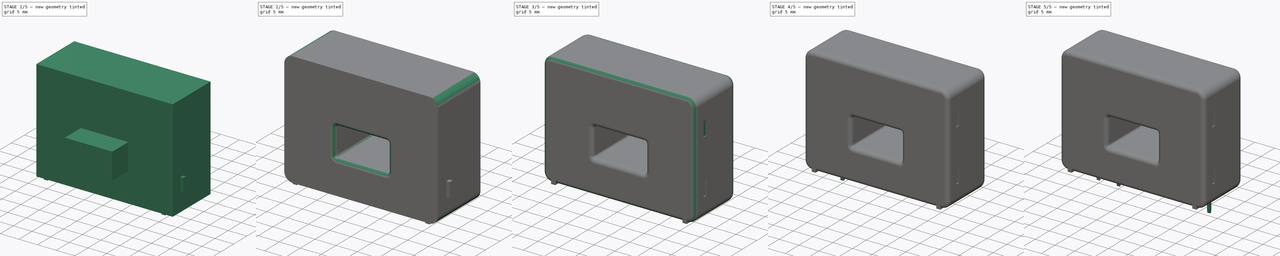
[diagram: build sequence overview — one tinted view per stage of 5, left to right]
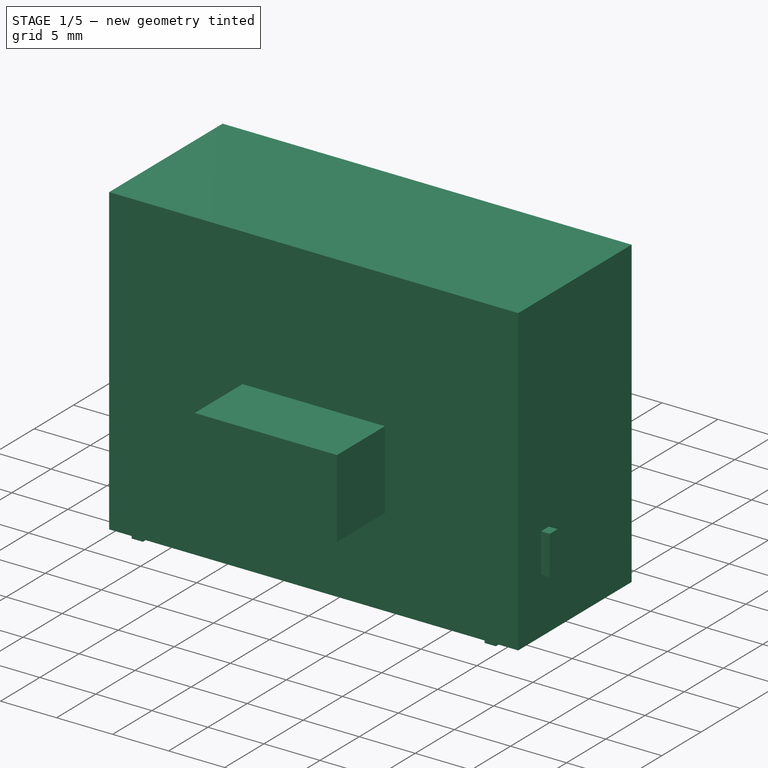
[diagram: stage 1 of 5 — iso view after this stage's code; geometry added in this stage tinted green]
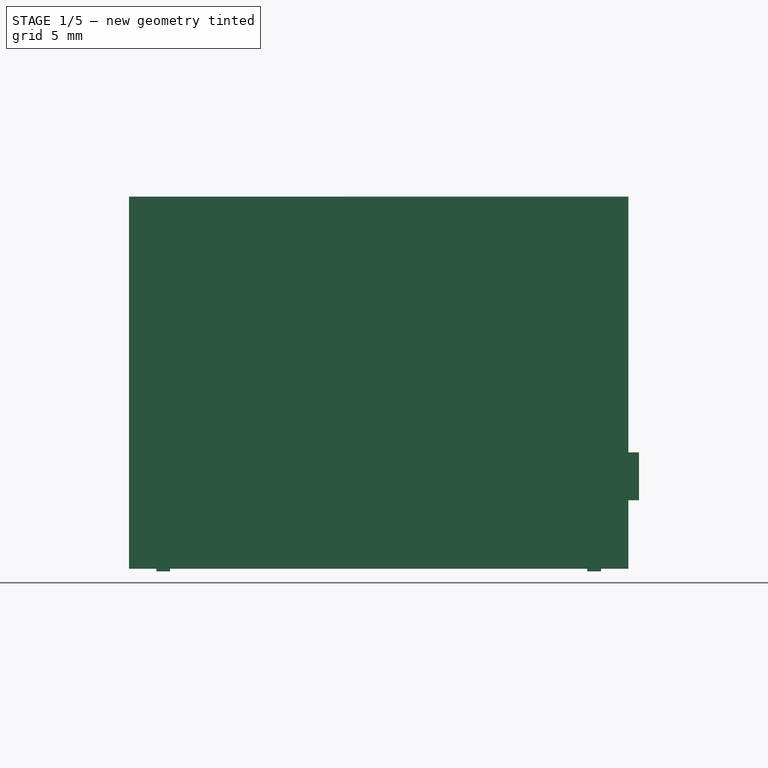
[diagram: stage 1 of 5 — front view after this stage's code; geometry added in this stage tinted green]
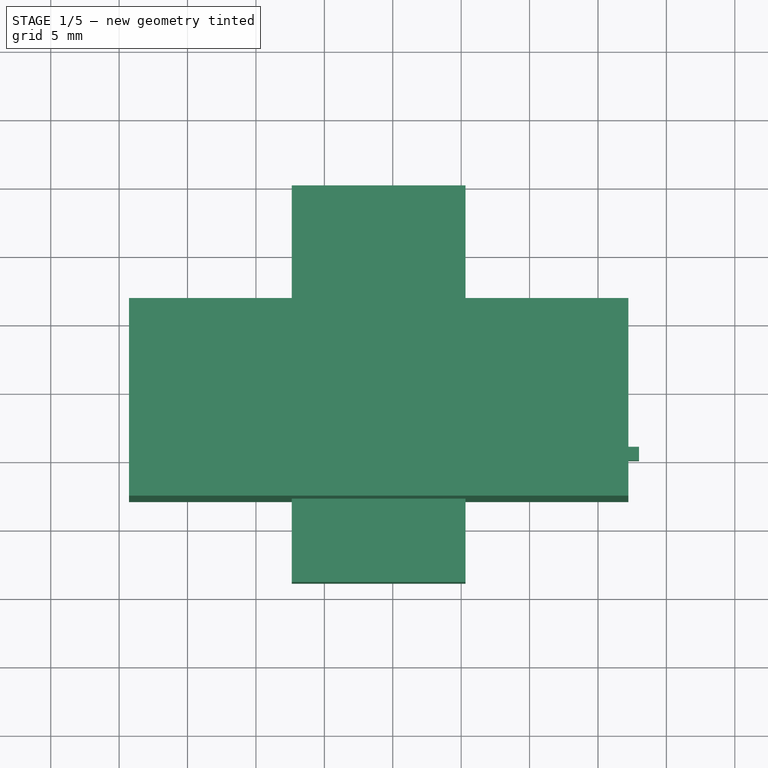
[diagram: stage 1 of 5 — top view after this stage's code; geometry added in this stage tinted green]
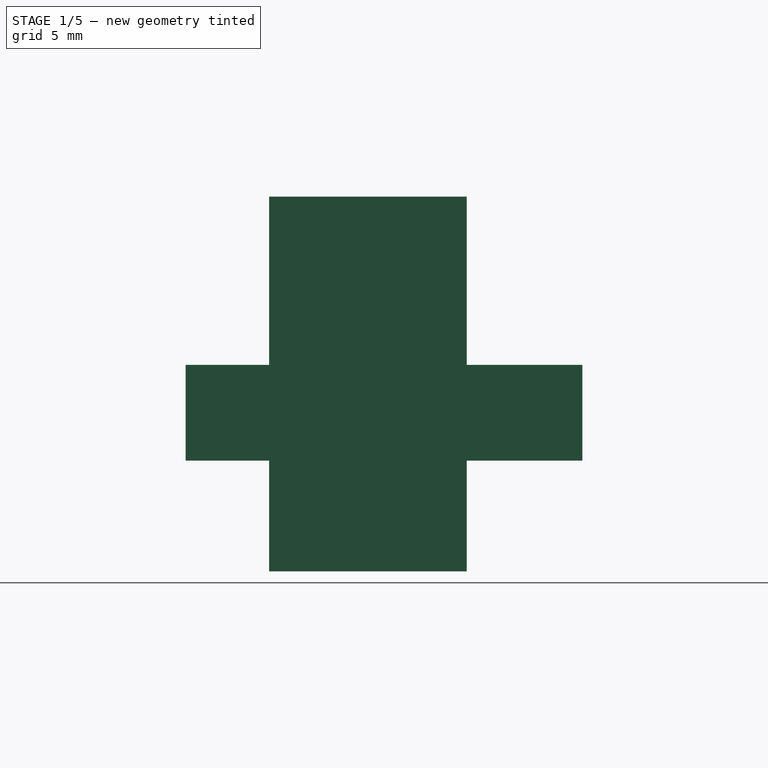
[diagram: stage 1 of 5 — right view after this stage's code; geometry added in this stage tinted green]
FCSTD DOCUMENT  (FreeCAD 0.17R11223 (Git))
Label: LEM_LA25-P_08
License: All rights reserved
LicenseURL: http://en.wikipedia.org/wiki/All_rights_reserved
objects: Part::Box×10, Part::Fillet×6, Part::Cut×5, Part::Chamfer×3, Sketcher::SketchObject×1, PartDesign::Pad×1, PartDesign::Body×1, Part::MultiFuse×1
note: 29 computed .brp shape members not serialized (recipe doc carries the construction recipe); baked Part::Feature solids carry a one-line shape summary decoded from their .brp

FEATURE [Sketcher::SketchObject] Sketch
  MapMode = 5
  Support = -> [XY_Plane]
  sketch-geometry (4):
    g0: LineSegment StartX=-4.28 StartY=6.55 StartZ=0 EndX=32.22 EndY=6.55 EndZ=0
    g1: LineSegment StartX=32.22 StartY=6.55 StartZ=0 EndX=32.22 EndY=-7.9 EndZ=0
    g2: LineSegment StartX=32.22 StartY=-7.9 StartZ=0 EndX=-4.28 EndY=-7.9 EndZ=0
    g3: LineSegment StartX=-4.28 StartY=-7.9 StartZ=0 EndX=-4.28 EndY=6.55 EndZ=0
  constraints (12):
    c: Coincident(g0,g1)
    c: Coincident(g1,g2)
    c: Coincident(g2,g3)
    c: Coincident(g3,g0)
    c: Horizontal(g0)
    c: Horizontal(g2)
    c: Vertical(g1)
    c: Vertical(g3)
    c: DistanceX(g0,g0) = 36.5
    c: DistanceY(g1,g0) = 14.45
    c: DistanceX(g0,g-1) = 4.28
    c: DistanceY(g-1,g0) = 6.55
FEATURE [PartDesign::Pad] Pad
  Length = 27.2
  Length2 = 100
  Profile = -> Sketch
  Type = 0
FEATURE [Part::Box] Box003  label="Kub003"
  AttacherType = Attacher::AttachEngine3D
  Height = 7
  Length = 12.7
  Placement = pos=(7.62,-14,7.9) rot=(0,0,1;0rad)
  Width = 29
FEATURE [Part::Box] Box004  label="Kub004"
  AttacherType = Attacher::AttachEngine3D
  Height = 2.2
  Length = 1
  Placement = pos=(-2.28,-7.9,-0.2) rot=(0,0,1;0rad)
  Width = 14.45
FEATURE [Part::Box] Box005  label="Kub005"
  AttacherType = Attacher::AttachEngine3D
  Height = 2.2
  Length = 1
  Placement = pos=(29.22,-7.9,-0.2) rot=(0,0,1;0rad)
  Width = 14.45
FEATURE [Part::Box] Box006  label="Kub006"
  AttacherType = Attacher::AttachEngine3D
  Height = 3.5
  Length = 1
  Placement = pos=(32,-5,5) rot=(0,0,1;0rad)
  Width = 1
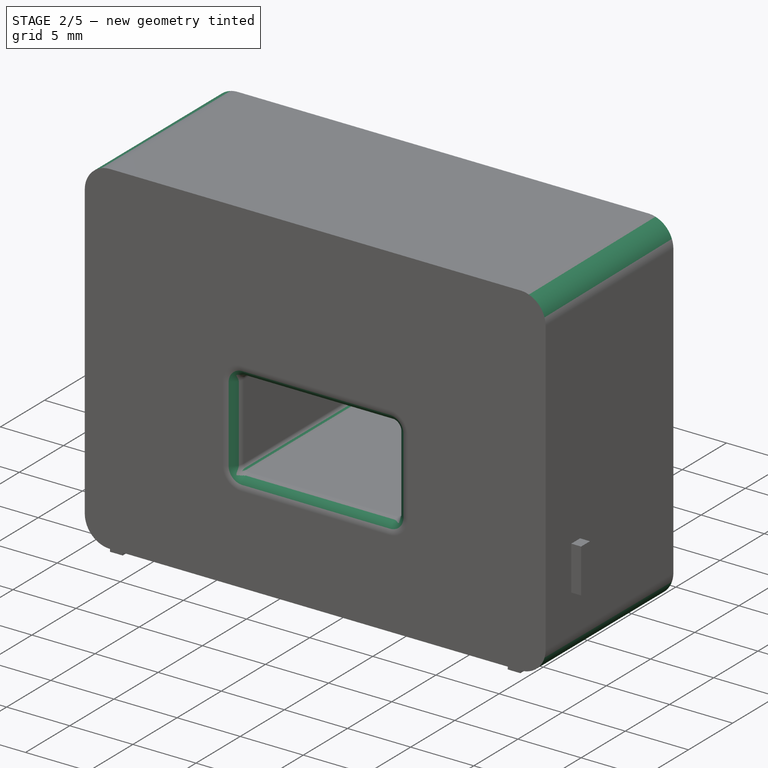
[diagram: stage 2 of 5 — iso view after this stage's code; geometry added in this stage tinted green]
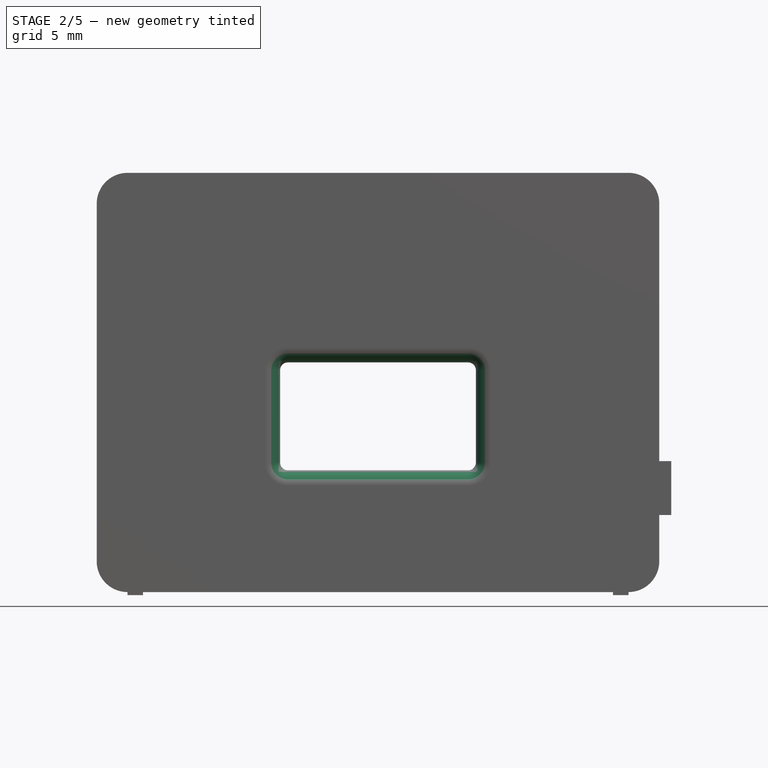
[diagram: stage 2 of 5 — front view after this stage's code; geometry added in this stage tinted green]
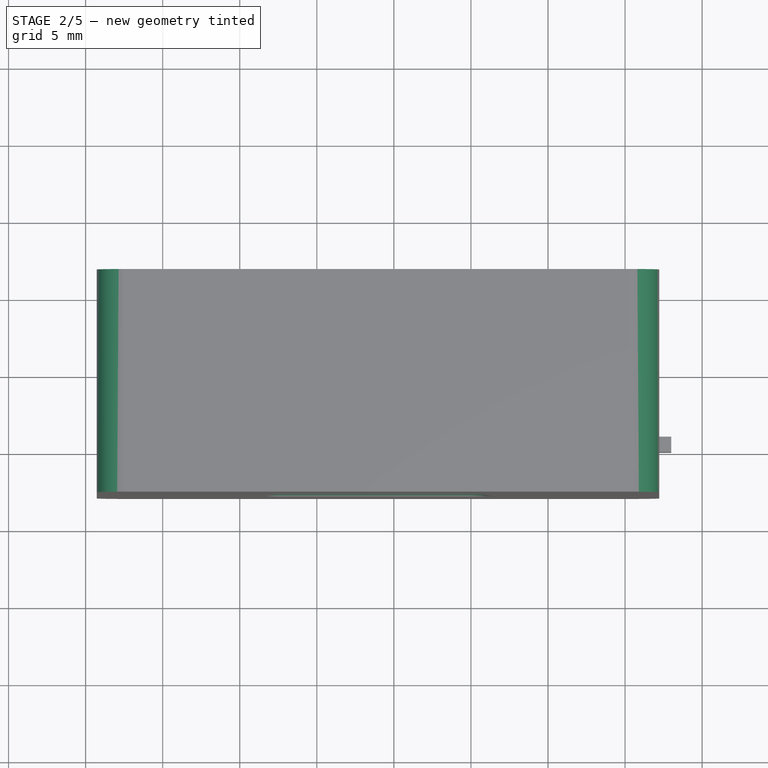
[diagram: stage 2 of 5 — top view after this stage's code; geometry added in this stage tinted green]
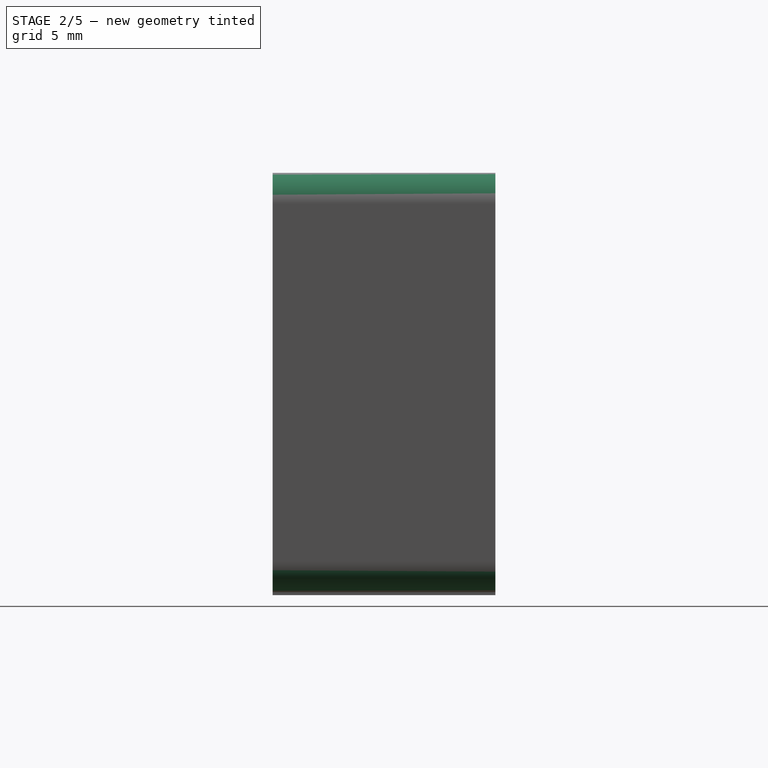
[diagram: stage 2 of 5 — right view after this stage's code; geometry added in this stage tinted green]
FEATURE [Part::Cut] Cut
  Base = -> Body
  Tool = -> Box003
FEATURE [Part::Fillet] Fillet
  Base = -> Cut
  Edges = 4 edges r=0.5: [Edge17,Edge18,Edge20,Edge22]
FEATURE [Part::Fillet] Fillet001
  Base = -> Fillet
  Edges = 8 edges r=1: [Edge15,Edge16,Edge18,Edge21,Edge23,Edge24,Edge26,Edge28]
FEATURE [Part::Fillet] Fillet002
  Base = -> Fillet001
  Edges = 7 edges r=1: [Edge3,Edge11,Edge12,Edge13,Edge14,Edge15,Edge16]
FEATURE [Part::Fillet] Fillet003
  Base = -> Fillet002
  Edges = 4 edges r=2: [Edge59,Edge60,Edge61,Edge62]
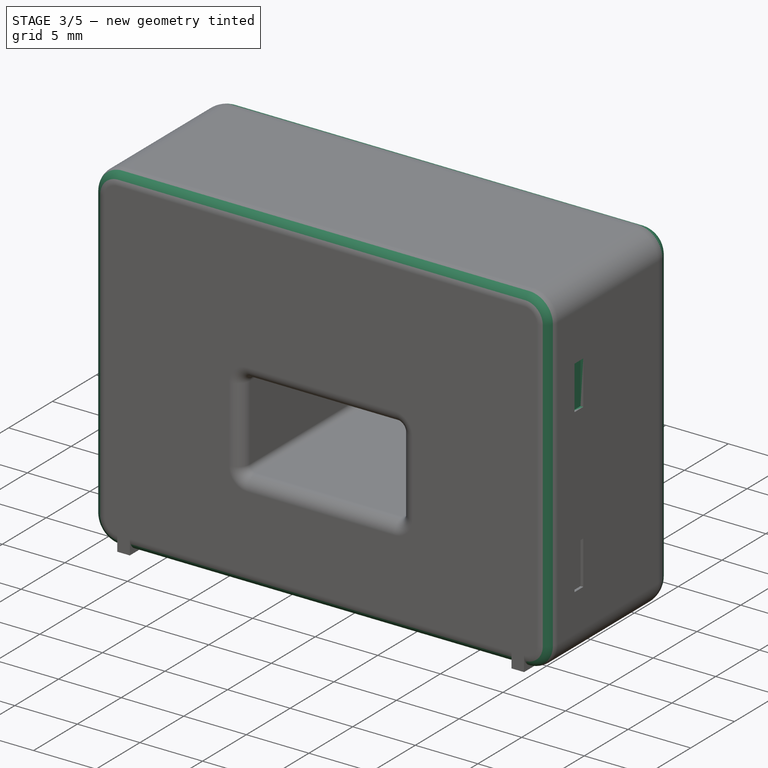
[diagram: stage 3 of 5 — iso view after this stage's code; geometry added in this stage tinted green]
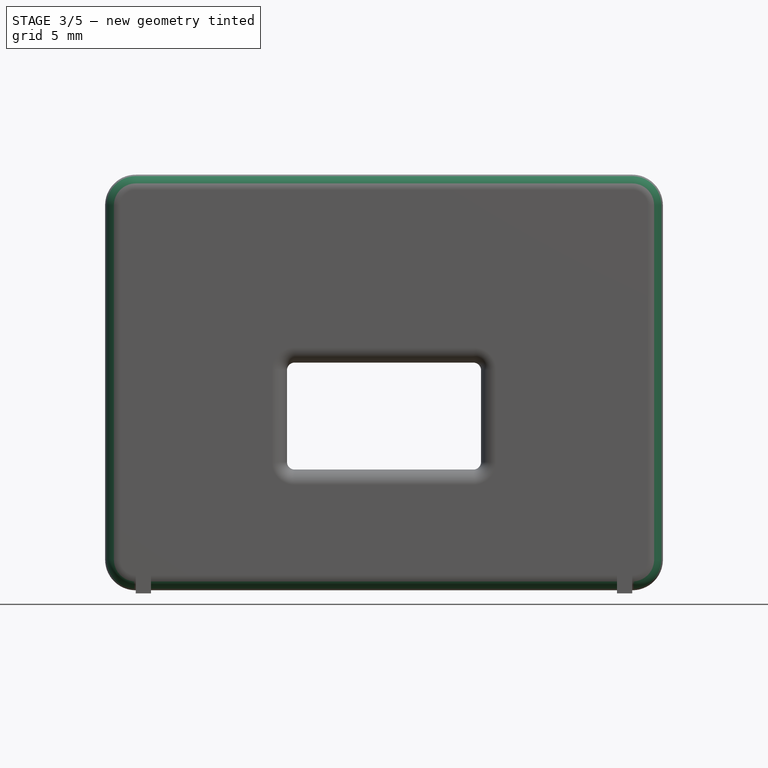
[diagram: stage 3 of 5 — front view after this stage's code; geometry added in this stage tinted green]
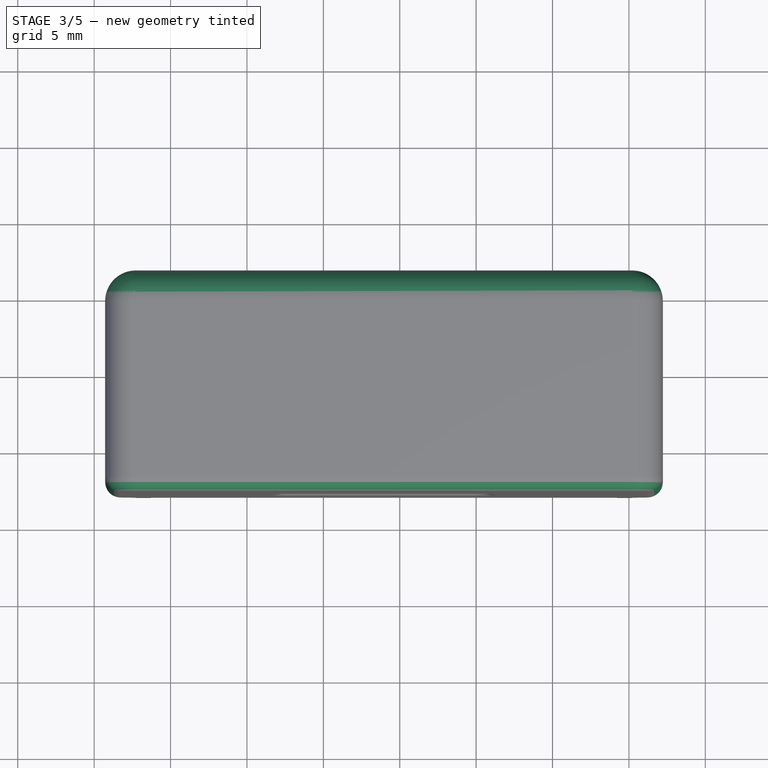
[diagram: stage 3 of 5 — top view after this stage's code; geometry added in this stage tinted green]
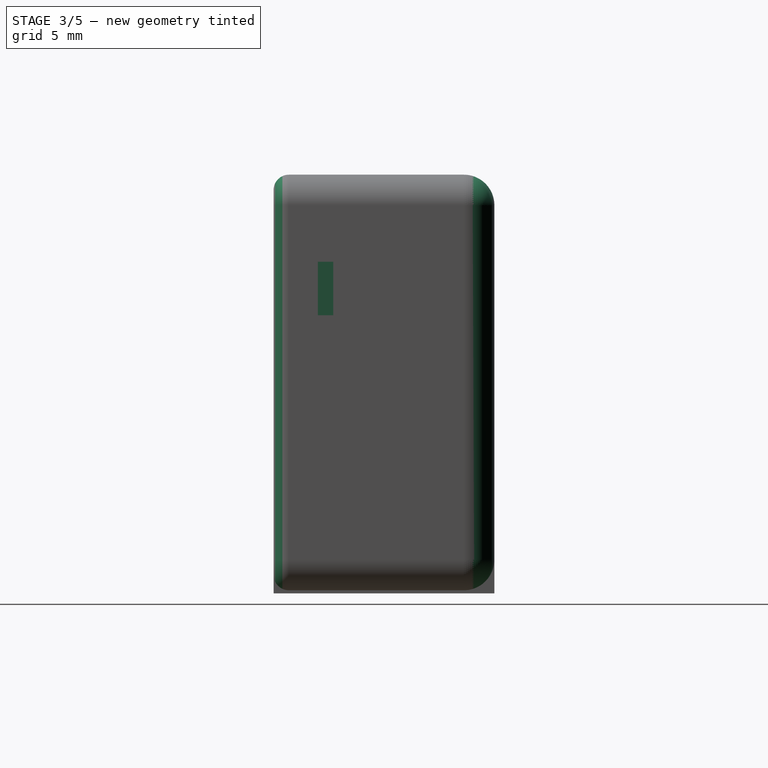
[diagram: stage 3 of 5 — right view after this stage's code; geometry added in this stage tinted green]
FEATURE [Part::Fillet] Fillet004
  Base = -> Fillet003
  Edges = 8 edges r=2: [Edge1,Edge2,Edge3,Edge4,Edge5,Edge6,Edge7,Edge8]
FEATURE [Part::Fillet] Fillet005
  Base = -> Fillet004
  Edges = 8 edges r=1: [Edge44,Edge51,Edge54,Edge59,Edge77,Edge78,Edge79,Edge80]
FEATURE [Part::MultiFuse] Fusion
  Shapes = -> [Fillet005,Box004,Box005]
FEATURE [Part::Box] Box007  label="Kub007"
  AttacherType = Attacher::AttachEngine3D
  Height = 3.5
  Length = 1
  Placement = pos=(32,-5,18) rot=(0,0,1;0rad)
  Width = 1
FEATURE [Part::Cut] Cut001
  Base = -> Fusion
  Tool = -> Box006
FEATURE [Part::Cut] Cut002
  Base = -> Cut001
  Tool = -> Box007
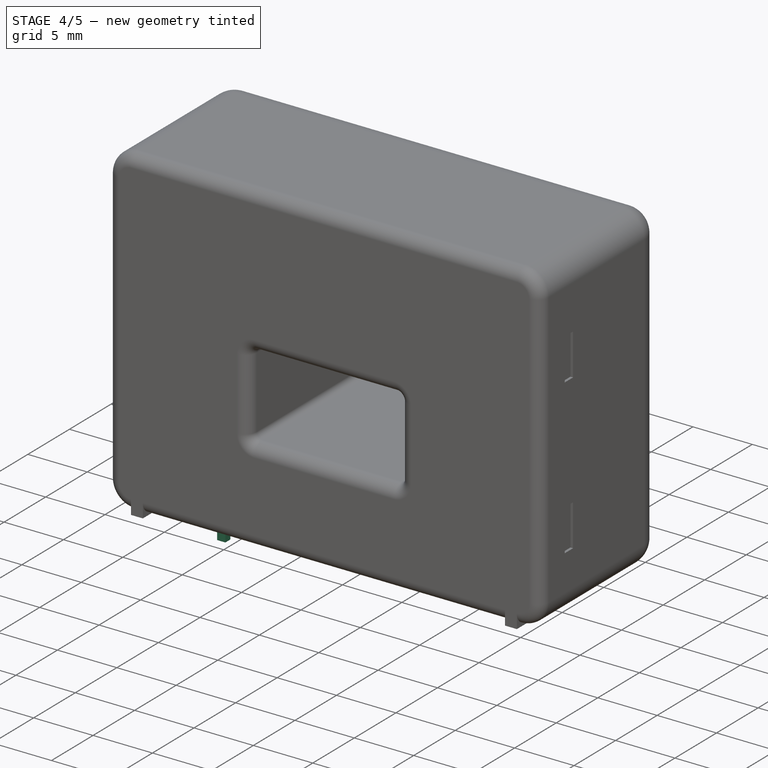
[diagram: stage 4 of 5 — iso view after this stage's code; geometry added in this stage tinted green]
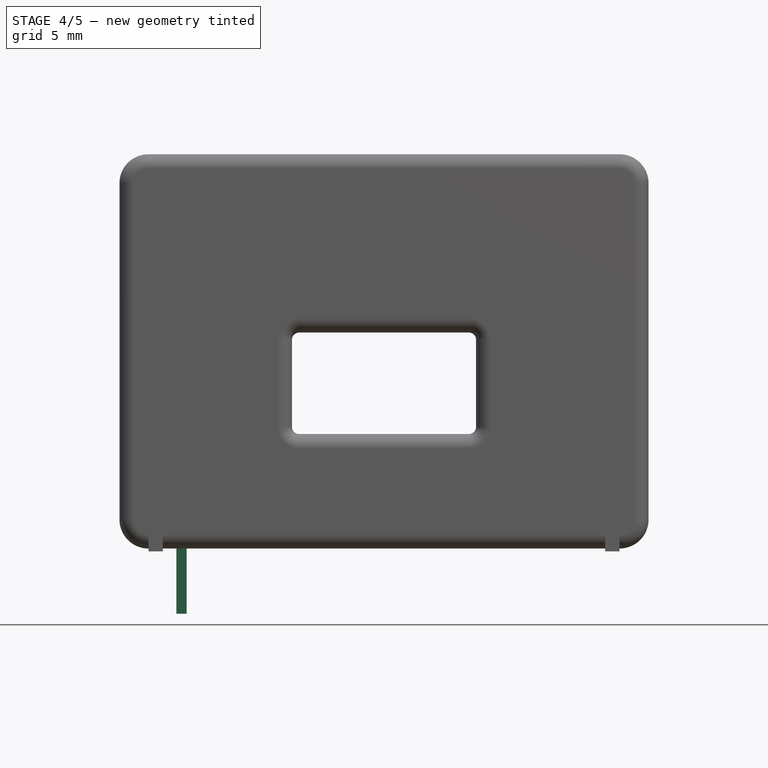
[diagram: stage 4 of 5 — front view after this stage's code; geometry added in this stage tinted green]
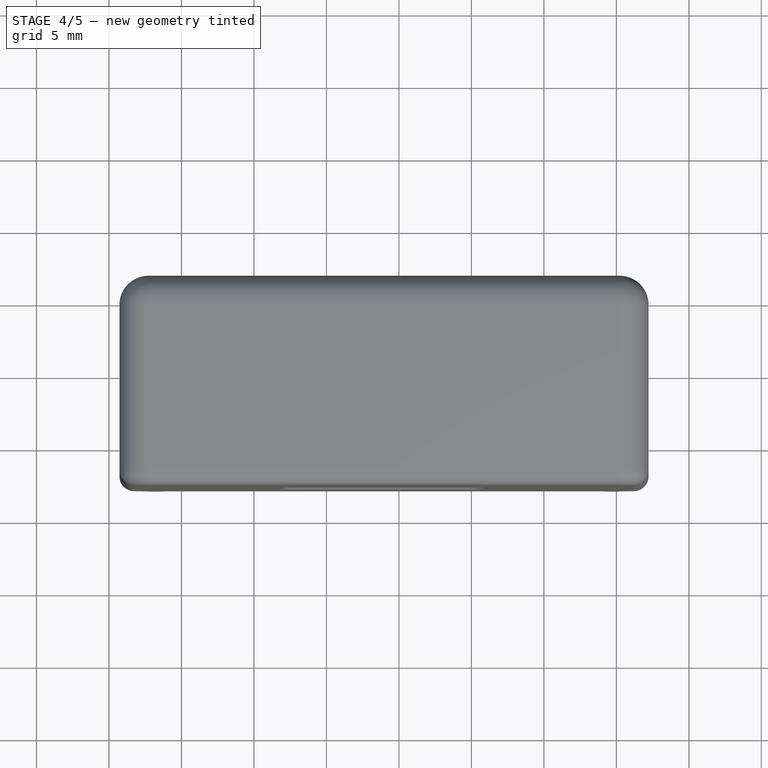
[diagram: stage 4 of 5 — top view after this stage's code; geometry added in this stage tinted green]
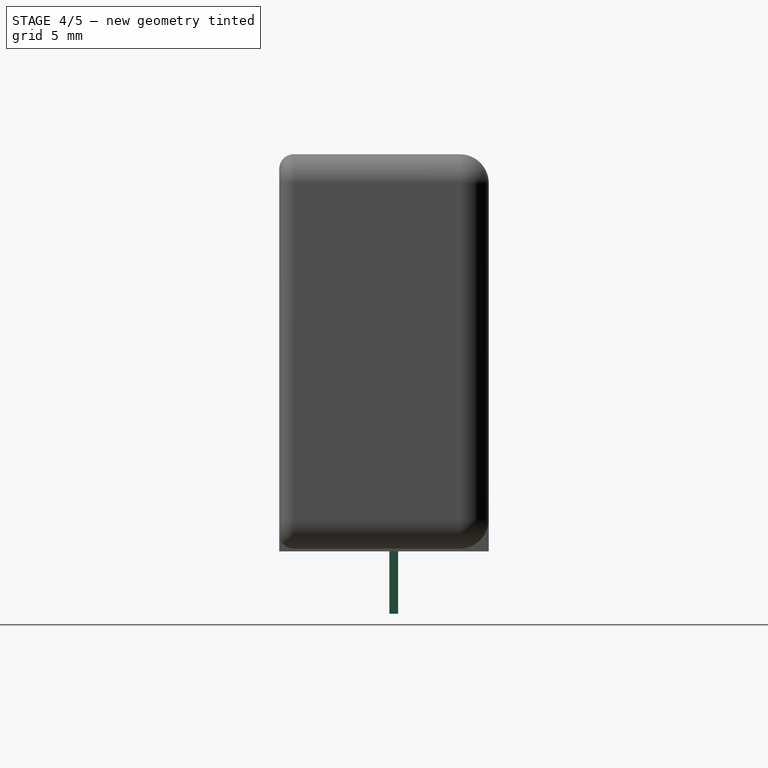
[diagram: stage 4 of 5 — right view after this stage's code; geometry added in this stage tinted green]
FEATURE [PartDesign::Body] Body
  Group = -> [Sketch,Pad]
  Origin = -> BodyOrigin
  Tip = -> Pad
FEATURE [Part::Box] Box  label="Kub"
  AttacherType = Attacher::AttachEngine3D
  Height = 5
  Length = 0.7
  Placement = pos=(-0.35,-0.3,-4.5) rot=(0,0,1;0rad)
  Width = 0.6
FEATURE [Part::Box] Box008  label="Kub008"
  AttacherType = Attacher::AttachEngine3D
  Height = 3.5
  Length = 1
  Placement = pos=(-5,-5,5) rot=(0,0,1;0rad)
  Width = 1
FEATURE [Part::Box] Box009  label="Kub009"
  AttacherType = Attacher::AttachEngine3D
  Height = 3.5
  Length = 1
  Placement = pos=(-5,-5,18) rot=(0,0,1;0rad)
  Width = 1
FEATURE [Part::Cut] Cut003
  Base = -> Cut002
  Tool = -> Box008
FEATURE [Part::Cut] Cut004
  Base = -> Cut003
  Tool = -> Box009
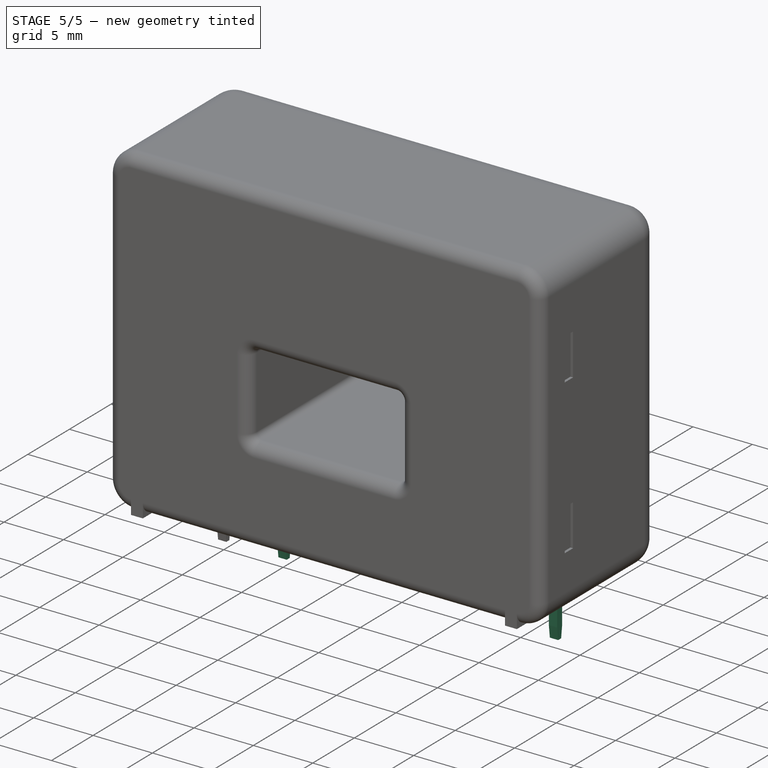
[diagram: stage 5 of 5 — iso view after this stage's code; geometry added in this stage tinted green]
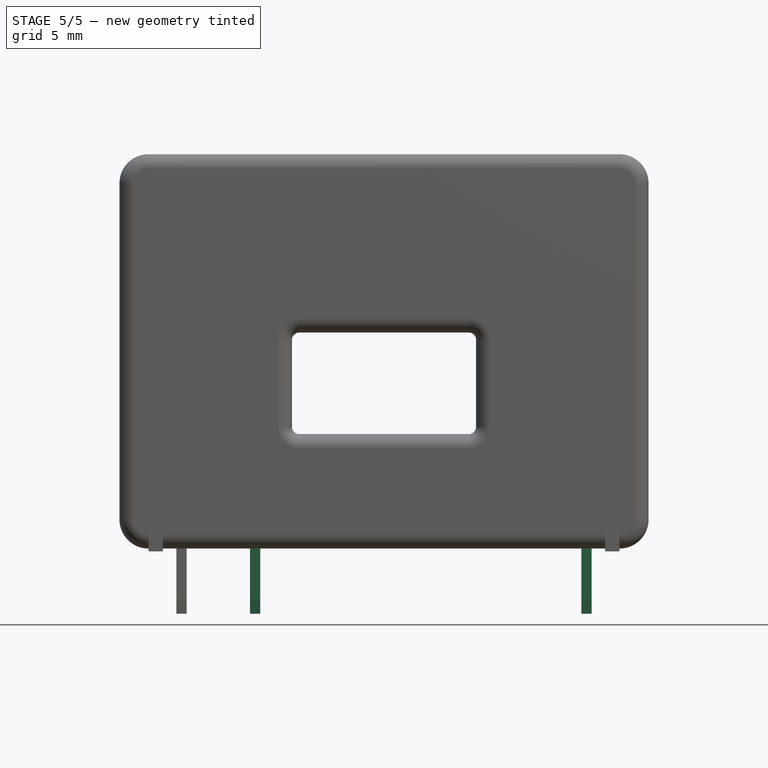
[diagram: stage 5 of 5 — front view after this stage's code; geometry added in this stage tinted green]
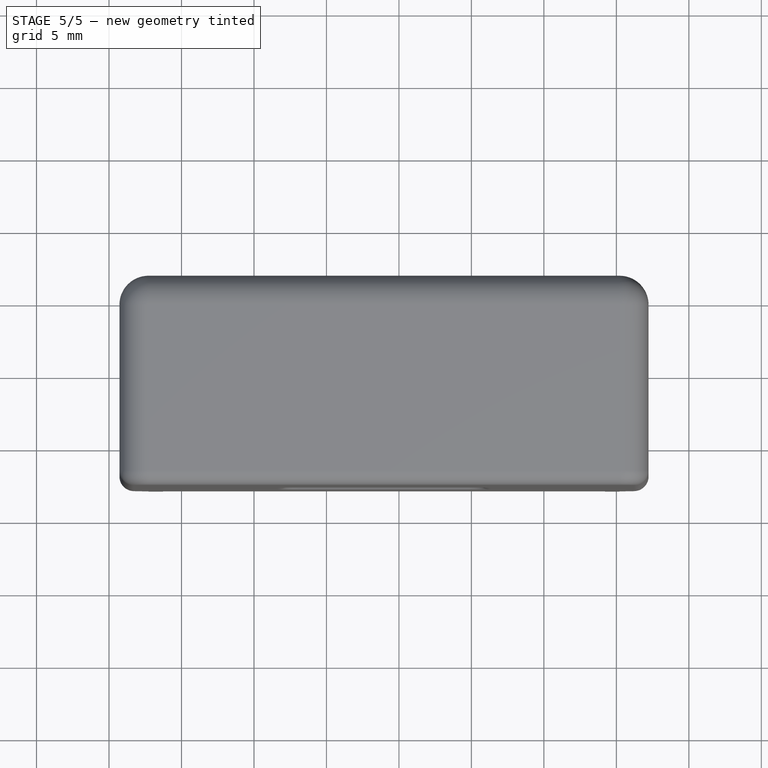
[diagram: stage 5 of 5 — top view after this stage's code; geometry added in this stage tinted green]
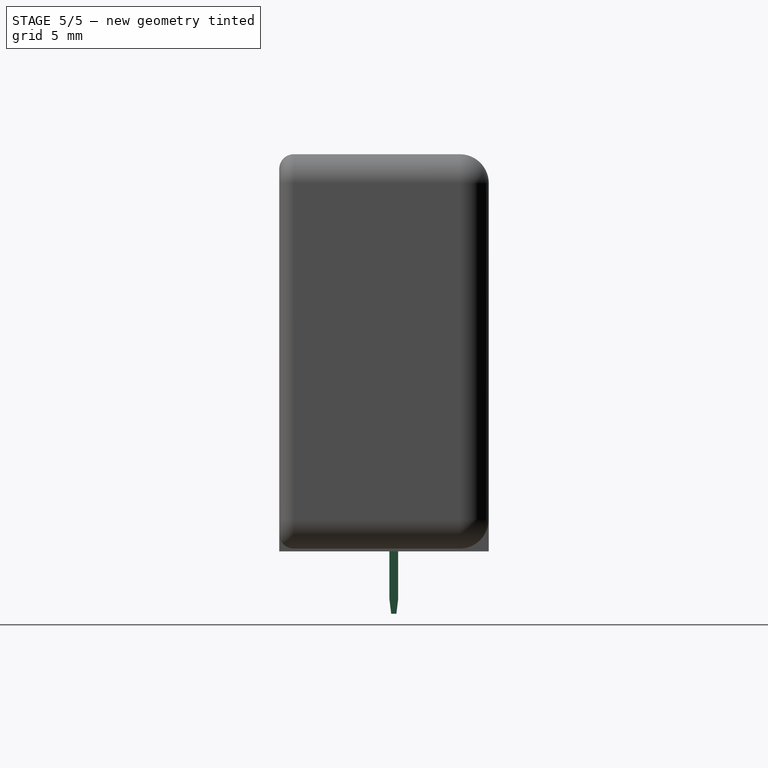
[diagram: stage 5 of 5 — right view after this stage's code; geometry added in this stage tinted green]
FEATURE [Part::Box] Box001  label="Kub001"
  AttacherType = Attacher::AttachEngine3D
  Height = 5
  Length = 0.7
  Placement = pos=(4.73,-0.3,-4.5) rot=(0,0,1;0rad)
  Width = 0.6
FEATURE [Part::Box] Box002  label="Kub002"
  AttacherType = Attacher::AttachEngine3D
  Height = 5
  Length = 0.7
  Placement = pos=(27.59,-0.3,-4.5) rot=(0,0,1;0rad)
  Width = 0.6
FEATURE [Part::Chamfer] Chamfer
  Base = -> Box002
  Edges = 2 edges: [Edge9 r1=1 r2=0.12,Edge11 r1=1 r2=0.12]
FEATURE [Part::Chamfer] Chamfer001
  Base = -> Box001
  Edges = 2 edges: [Edge9 r1=1 r2=0.12,Edge11 r1=1 r2=0.12]
FEATURE [Part::Chamfer] Chamfer002
  Base = -> Box
  Edges = 2 edges: [Edge9 r1=1 r2=0.12,Edge11 r1=1 r2=0.12]
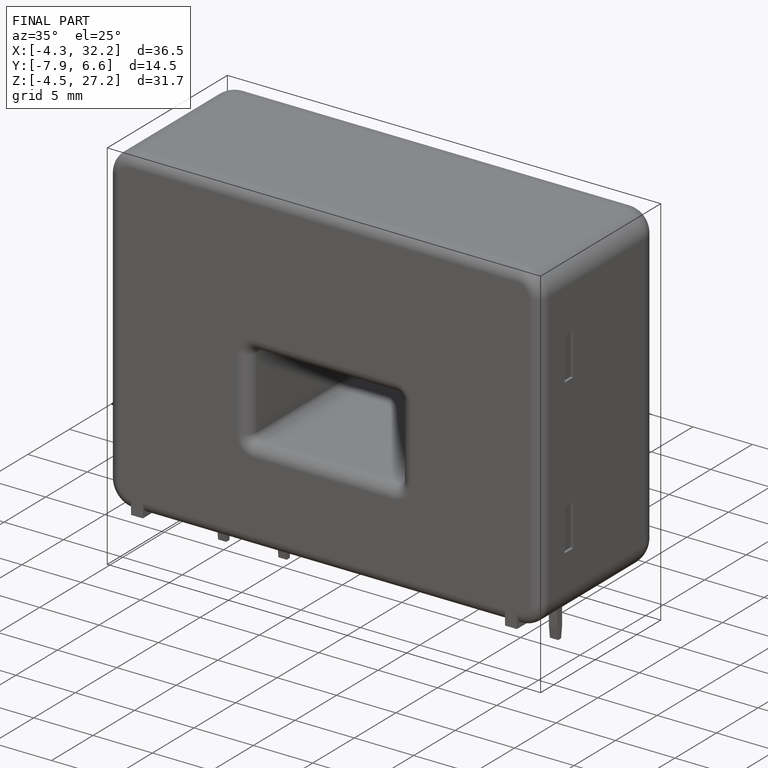
[diagram: finished part — iso view with bounding-box wireframe]
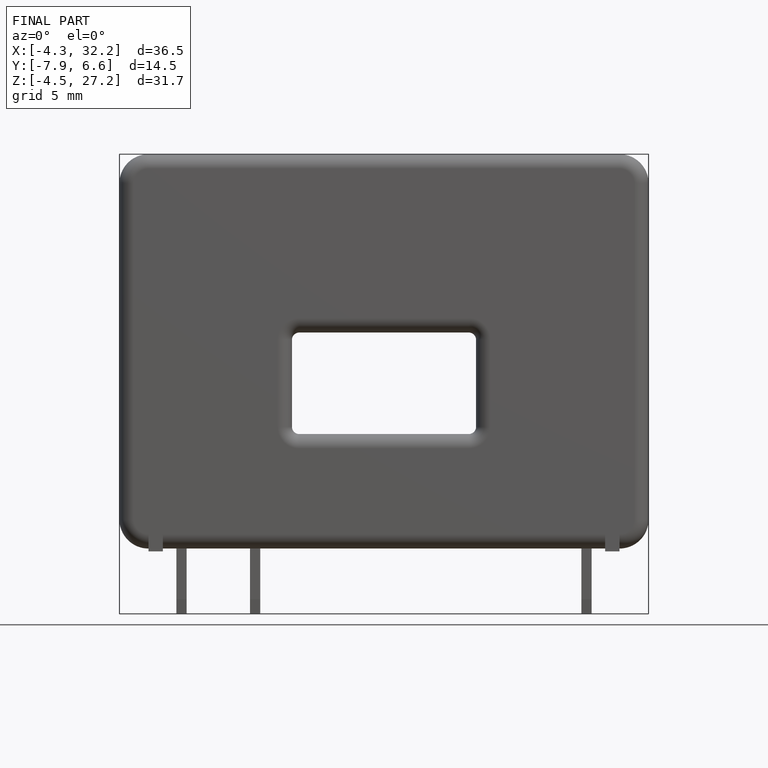
[diagram: finished part — front view with bounding-box wireframe]
